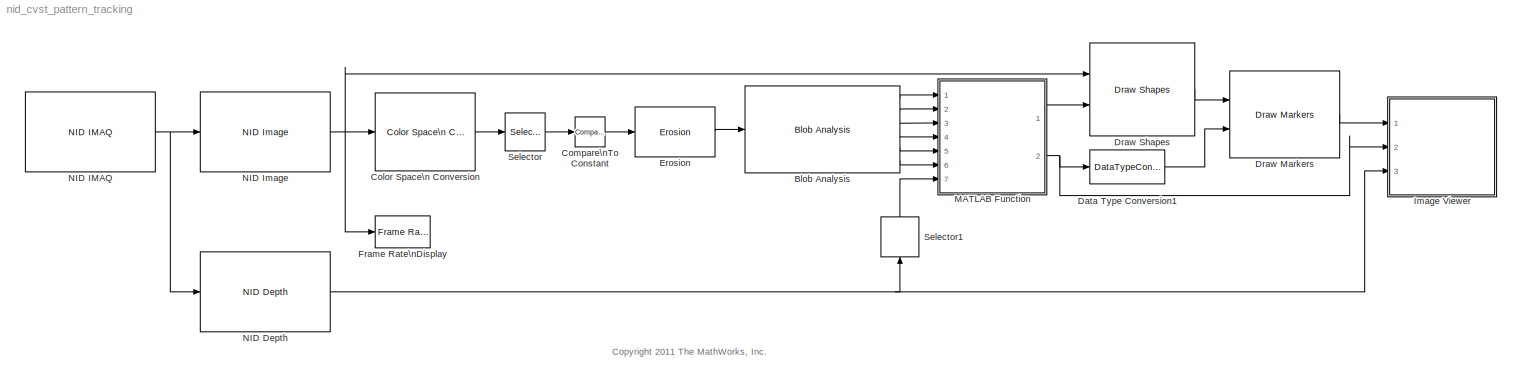
MODEL nid_cvst_pattern_tracking
KIND model
BLOCK [Reference] Blob Analysis  REF=visionstatistics/Blob Analysis
  LockScale = off
  Ports = [1, 6]
  SID = 86
  SourceBlock = visionstatistics/Blob Analysis
  SourceProductBaseCode = VP
  SourceProductName = Computer Vision Toolbox
  SourceType = Blob Analysis
  Tag = vipblks_row_conv
  accumFracLength = 0
  accumMode = Binary point scaling
  accumWordLength = 32
  angle = off
  area = on
  bBox = on
  centroid = on
  conn = 8
  eccentricity = off
  equivDiameterSq = off
  excludeBorderBlob = off
  extent = off
  fillValues = -1
  firstCoeffFracLength = 14
  firstCoeffMode = Binary point scaling
  firstCoeffWordLength = 16
  isCount = off
  isFill = on
  isLabel = off
  isOutVarDim = off
  majorAxis = on
  maxArea = intmax('uint32')
  maxBlobs = 500
  memoryFracLength = 16
  memoryMode = Same as product output
  memoryWordLength = 32
  minArea = 0
  minorAxis = on
  outDT = double
  outputFracLength = 16
  outputMode = Binary point scaling
  outputWordLength = 32
  overflowMode = off
  perimeter = on
  prodOutputFracLength = 16
  prodOutputMode = Binary point scaling
  prodOutputWordLength = 32
  roundingMode = Floor
  secondCoeffFracLength = 16
  secondCoeffMode = Binary point scaling
  secondCoeffWordLength = 32
  useMaxArea = off
  useMinArea = off
  warnIfNumBlobsExceeded = on
BLOCK [Reference] Color Space\n Conversion  REF=visionconversions/Color Space\n Conversion
  Ports = [1, 1]
  SID = 110
  SourceBlock = visionconversions/Color Space\n Conversion
  SourceProductBaseCode = VP
  SourceProductName = Computer Vision Toolbox
  SourceType = Color Space Conversion
  conversion = Obsolete
  conversionActive = R'G'B' to Y'CbCr
  imagePorts = One multidimensional signal
  rec = Rec. 601 (SDTV)
  sys = 1125/60/2:1
  wp_str = D65
BLOCK [Reference] Compare\nTo Constant  REF=simulink/Logic and Bit\nOperations/Compare\nTo Constant
  OutDataTypeStr = boolean
  Ports = [1, 1]
  SID = 88
  SourceBlock = simulink/Logic and Bit\nOperations/Compare\nTo Constant
  SourceProductBaseCode = SL
  SourceProductName = Simulink
  SourceType = Compare To Constant
  ZeroCross = on
  const = 150
  relop = >
BLOCK [DataTypeConversion] Data Type Conversion1
  OutDataTypeStr = int32
  RndMeth = Round
  SID = 161
  SaturateOnIntegerOverflow = off
BLOCK [Reference] Draw Markers  REF=visiontextngfix/Draw Markers
  LockScale = off
  Ports = [2, 1]
  SID = 148
  SourceBlock = visiontextngfix/Draw Markers
  SourceProductBaseCode = VP
  SourceProductName = Computer Vision Toolbox
  SourceType = Draw Markers
  accumFracLength = 14
  accumMode = Same as product output
  accumWordLength = 32
  antialiasing = off
  color = [0 0 255]
  display = User-specified value
  fill = off
  fillClrSource = Specify via dialog
  imagePorts = One multidimensional signal
  inType = Obsolete
  intensity = 155
  memoryFracLength = 15
  memoryMode = Specify word length
  memoryWordLength = 16
  opacity = 0
  overflowMode = off
  prodOutputFracLength = 14
  prodOutputMode = Binary point scaling
  prodOutputWordLength = 32
  roundingMode = Floor
  shape = Star
  size = 3
  viewport = Entire image
BLOCK [Reference] Draw Shapes  REF=visiontextngfix/Draw Shapes
  LockScale = off
  Ports = [2, 1]
  SID = 96
  SourceBlock = visiontextngfix/Draw Shapes
  SourceProductBaseCode = VP
  SourceProductName = Computer Vision Toolbox
  SourceType = Draw Shapes
  accumFracLength = 14
  accumMode = Same as product output
  accumWordLength = 32
  antialiasing = off
  color = [0 0 255]
  display = User-specified value
  fill = off
  fillClrSource = Specify via dialog
  imagePorts = One multidimensional signal
  inType = Obsolete
  intensity = 200
  memoryFracLength = 15
  memoryMode = Specify word length
  memoryWordLength = 16
  opacity = 0.6
  overflowMode = off
  prodOutputFracLength = 14
  prodOutputMode = Binary point scaling
  prodOutputWordLength = 32
  roundingMode = Floor
  shape = Rectangles
  viewport = Entire image
BLOCK [Reference] Erosion  REF=visionmorphops/Erosion
  Ports = [1, 1]
  SID = 112
  SourceBlock = visionmorphops/Erosion
  SourceProductBaseCode = VP
  SourceProductName = Computer Vision Toolbox
  SourceType = Erosion
  nhoodsrc = Specify via dialog
  strel = strel('square',4)
BLOCK [Reference] Frame Rate\nDisplay  REF=visionsinks/Frame Rate\nDisplay
  Ports = [1]
  SID = 109
  SourceBlock = visionsinks/Frame Rate\nDisplay
  SourceProductBaseCode = VP
  SourceProductName = Computer Vision Toolbox
  SourceType = Frame Rate Display
  UpdateRate = 10
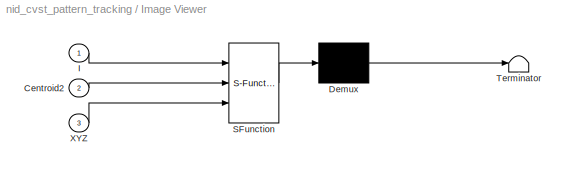
BLOCK [SubSystem] Image Viewer
  ErrorFcn = Stateflow.Translate.translate
  PermitHierarchicalResolution = ExplicitOnly
  Ports = [3]
  RequestExecContextInheritance = off
  SFBlockType = MATLAB Function
  SID = 162
  TreatAsAtomicUnit = on
BLOCK [Demux] Image Viewer/ Demux 
  Outputs = 1
  Ports = [1, 1]
  SID = 162::21
BLOCK [S-Function] Image Viewer/ SFunction 
  EnableBusSupport = off
  FunctionName = sf_sfun
  PortCounts = [3 1]
  Ports = [3, 1]
  SFcnIsStateOwnerBlock = off
  SFunctionDeploymentMode = off
  SID = 162::20
  Tag = Stateflow S-Function 1
BLOCK [Terminator] Image Viewer/ Terminator 
  SID = 162::22
BLOCK [Inport] Image Viewer/Centroid2
  IconDisplay = Port number
  Port = 2
  SID = 162::18
BLOCK [Inport] Image Viewer/I
  IconDisplay = Port number
  SID = 162::1
BLOCK [Inport] Image Viewer/XYZ
  IconDisplay = Port number
  Port = 3
  SID = 162::19
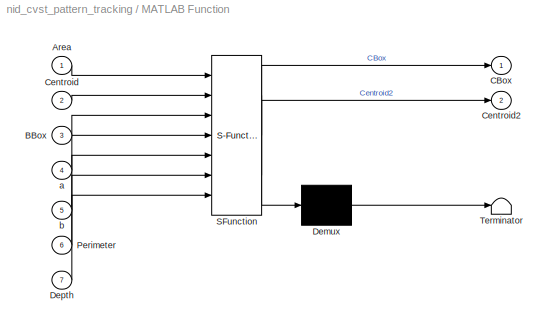
BLOCK [SubSystem] MATLAB Function
  ErrorFcn = Stateflow.Translate.translate
  PermitHierarchicalResolution = ExplicitOnly
  Ports = [7, 2]
  RequestExecContextInheritance = off
  SFBlockType = MATLAB Function
  SID = 100
  TreatAsAtomicUnit = on
BLOCK [Demux] MATLAB Function/ Demux 
  Outputs = 1
  Ports = [1, 1]
  SID = 100::28
BLOCK [S-Function] MATLAB Function/ SFunction 
  EnableBusSupport = off
  FunctionName = sf_sfun
  PortCounts = [7 3]
  Ports = [7, 3]
  SFcnIsStateOwnerBlock = off
  SFunctionDeploymentMode = off
  SID = 100::27
  Tag = Stateflow S-Function 2
BLOCK [Terminator] MATLAB Function/ Terminator 
  SID = 100::29
BLOCK [Inport] MATLAB Function/Area
  IconDisplay = Port number
  SID = 100::22
BLOCK [Inport] MATLAB Function/BBox
  IconDisplay = Port number
  Port = 3
  SID = 100::21
BLOCK [Outport] MATLAB Function/CBox
  IconDisplay = Port number
  SID = 100::5
BLOCK [Inport] MATLAB Function/Centroid
  IconDisplay = Port number
  Port = 2
  SID = 100::24
BLOCK [Outport] MATLAB Function/Centroid2
  IconDisplay = Port number
  Port = 2
  SID = 100::26
BLOCK [Inport] MATLAB Function/Depth
  IconDisplay = Port number
  Port = 7
  SID = 100::23
BLOCK [Inport] MATLAB Function/Perimeter
  IconDisplay = Port number
  Port = 6
  SID = 100::20
BLOCK [Inport] MATLAB Function/a
  IconDisplay = Port number
  Port = 4
  SID = 100::19
BLOCK [Inport] MATLAB Function/b
  IconDisplay = Port number
  Port = 5
  SID = 100::18
BLOCK [Reference] NID Depth  REF=nid_lib/NID Depth
  Ports = [1, 1]
  SID = 106
  SourceBlock = nid_lib/NID Depth
  SourceType = NID Depth
  conv_XYZ_RW = on
  depthOutput = XYZ
  viewer = off
BLOCK [Reference] NID IMAQ  REF=nid_lib/NID IMAQ
  Ports = [0, 1]
  SID = 98
  SourceBlock = nid_lib/NID IMAQ
  SourceType = NID IMAQ
  imaq_depth = on
  imaq_image = on
  imaq_ir = off
  imaq_motion = off
  imaq_sample_time = 1/30
  imaq_skeleton = off
  mirror_image = off
  res_fps = VGA (640x480): 30 FPS
  view_point = on
BLOCK [Reference] NID Image  REF=nid_lib/NID Image
  Ports = [1, 1]
  SID = 99
  SourceBlock = nid_lib/NID Image
  SourceType = NID Image
  imageOutput = RGB
BLOCK [Selector] Selector
  IndexOptions = Select all,Select all,Index vector (dialog)
  Indices = [1 3],1,3
  InputPortWidth = 3
  NumberOfDimensions = 3
  OutputSizes = 1,1,1
  Ports = [1, 1]
  SID = 146
BLOCK [Selector] Selector1
  IndexOptions = Select all,Select all,Index vector (dialog)
  Indices = [1 3],1,3
  InputPortWidth = 3
  NumberOfDimensions = 3
  OutputSizes = 1,1,1
  Ports = [1, 1]
  SID = 171
ANNOTATION (root): <copyright redacted>
LINE Blob Analysis:1 -> MATLAB Function:1
LINE Blob Analysis:2 -> MATLAB Function:2
LINE Blob Analysis:3 -> MATLAB Function:3
LINE Blob Analysis:4 -> MATLAB Function:4
LINE Blob Analysis:5 -> MATLAB Function:5
LINE Blob Analysis:6 -> MATLAB Function:6
LINE Color Space\n Conversion:1 -> Selector:1
LINE Compare\nTo Constant:1 -> Erosion:1
LINE Data Type Conversion1:1 -> Draw Markers:2
LINE Draw Markers:1 -> Image Viewer:1
LINE Draw Shapes:1 -> Draw Markers:1
LINE Erosion:1 -> Blob Analysis:1
LINE Image Viewer/ Demux :1 -> Image Viewer/ Terminator :1
LINE Image Viewer/ SFunction :1 -> Image Viewer/ Demux :1
LINE Image Viewer/Centroid2:1 -> Image Viewer/ SFunction :2
LINE Image Viewer/I:1 -> Image Viewer/ SFunction :1
LINE Image Viewer/XYZ:1 -> Image Viewer/ SFunction :3
LINE MATLAB Function/ Demux :1 -> MATLAB Function/ Terminator :1
LINE MATLAB Function/ SFunction :1 -> MATLAB Function/ Demux :1
LINE MATLAB Function/ SFunction :2 -> MATLAB Function/CBox:1
LINE MATLAB Function/ SFunction :3 -> MATLAB Function/Centroid2:1
LINE MATLAB Function/Area:1 -> MATLAB Function/ SFunction :1
LINE MATLAB Function/BBox:1 -> MATLAB Function/ SFunction :3
LINE MATLAB Function/Centroid:1 -> MATLAB Function/ SFunction :2
LINE MATLAB Function/Depth:1 -> MATLAB Function/ SFunction :7
LINE MATLAB Function/Perimeter:1 -> MATLAB Function/ SFunction :6
LINE MATLAB Function/a:1 -> MATLAB Function/ SFunction :4
LINE MATLAB Function/b:1 -> MATLAB Function/ SFunction :5
LINE MATLAB Function:1 -> Draw Shapes:2
NET MATLAB Function:2 -> Data Type Conversion1:1, Image Viewer:2
NET NID Depth:1 -> Image Viewer:3, Selector1:1
NET NID IMAQ:1 -> NID Depth:1, NID Image:1
NET NID Image:1 -> Color Space\n Conversion:1, Draw Shapes:1, Frame Rate\nDisplay:1
LINE Selector1:1 -> MATLAB Function:7
LINE Selector:1 -> Compare\nTo Constant:1
note: NET lines group one-source signal fan-out (src -> all destinations, sorted); 1:1 wires keep LINE
CHART Image Viewer states=1 transitions=1
  STATE_LABEL 'eML_blk_kernel()'
CHART MATLAB Function states=1 transitions=1
  STATE_LABEL 'eML_blk_kernel()'
